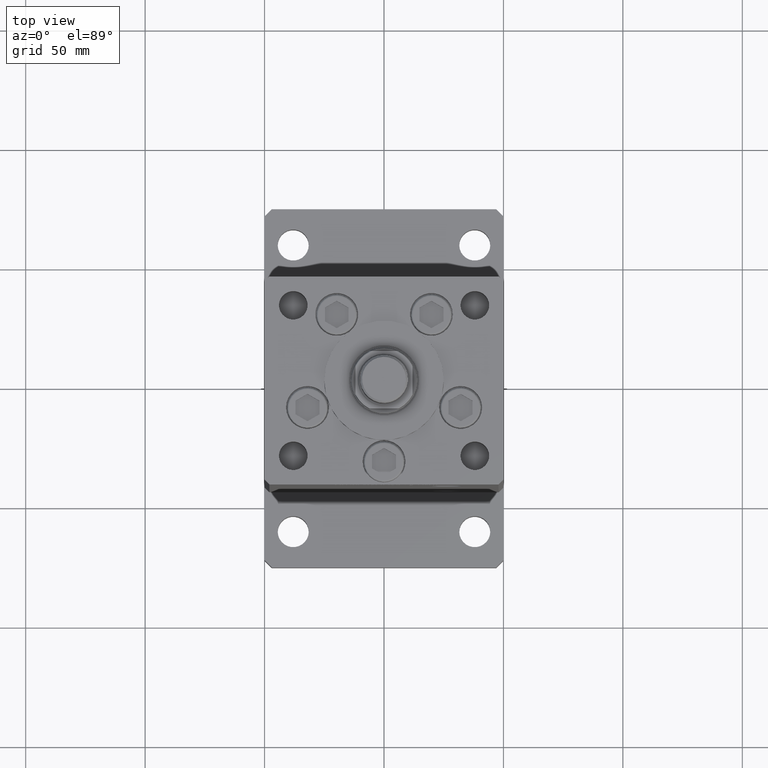
[diagram: clean part render]
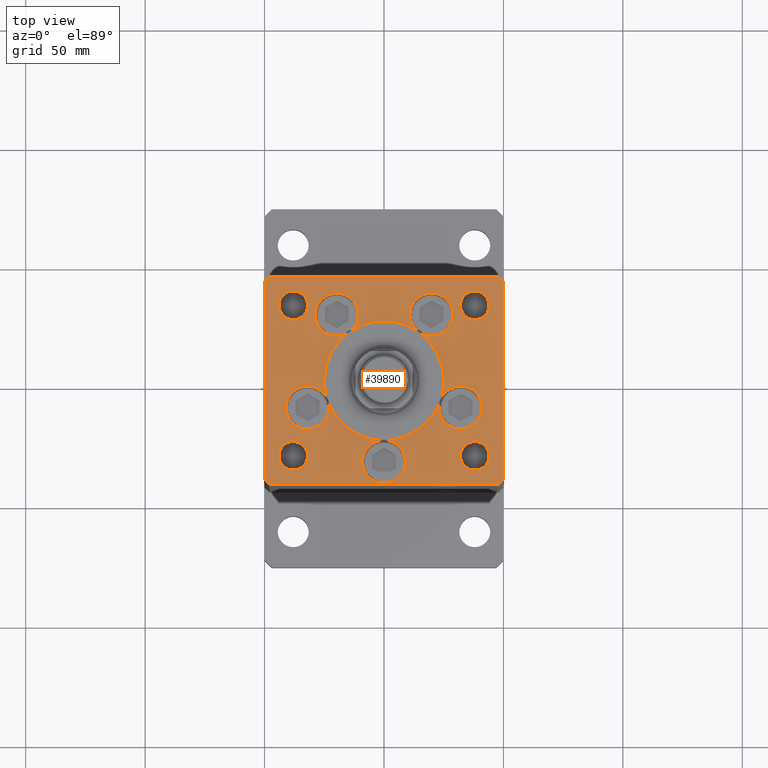
[diagram: same view with one face highlighted and labeled with its STEP entity id]
A machine part, top view. The second image highlights one B-rep face of the part: STEP entity #39890.
In plain terms, the highlighted planar face has unit normal (0, 0, 1).
Its self-contained STEP definition (entity closure, byte-faithful):
#365 = ORIENTED_EDGE ( 'NONE', *, *, #21326, .F. ) ;
#547 = ORIENTED_EDGE ( 'NONE', *, *, #8054, .F. ) ;
#694 = AXIS2_PLACEMENT_3D ( 'NONE', #52104, #26661, #51300 ) ;
#732 = CARTESIAN_POINT ( 'NONE',  ( 32.05550741379015989, -11.33333333333332860, 0.000000000000000000 ) ) ;
#916 = VECTOR ( 'NONE', #39343, 1000.000000000000000 ) ;
#937 = CARTESIAN_POINT ( 'NONE',  ( -38.00000000000000000, 31.50000000000000000, 0.000000000000000000 ) ) ;
#965 = DIRECTION ( 'NONE',  ( 1.000000000000000000, 1.156482317317871331E-15, 0.000000000000000000 ) ) ;
#1004 = DIRECTION ( 'NONE',  ( 0.000000000000000000, 0.000000000000000000, 1.000000000000000000 ) ) ;
#1280 = DIRECTION ( 'NONE',  ( 0.000000000000000000, 0.000000000000000000, 1.000000000000000000 ) ) ;
#1296 = LINE ( 'NONE', #18001, #916 ) ;
#1330 = EDGE_CURVE ( 'NONE', #43810, #5140, #34115, .T. ) ;
#1498 = CARTESIAN_POINT ( 'NONE',  ( -48.00000000000000711, -43.50000000000002842, 0.000000000000000000 ) ) ;
#1555 = AXIS2_PLACEMENT_3D ( 'NONE', #42412, #21629, #38300 ) ;
#1598 = CARTESIAN_POINT ( 'NONE',  ( 38.00000000000000000, 31.50000000000000000, 0.000000000000000000 ) ) ;
#2066 = EDGE_CURVE ( 'NONE', #39570, #11629, #37621, .T. ) ;
#2194 = CARTESIAN_POINT ( 'NONE',  ( -19.82068048781374969, 27.62499999999998934, 0.000000000000000000 ) ) ;
#2428 = CARTESIAN_POINT ( 'NONE',  ( 48.00000000000000711, -43.49999999999992184, 0.000000000000000000 ) ) ;
#2552 = CIRCLE ( 'NONE', #22670, 25.00000000000000000 ) ;
#2852 = ORIENTED_EDGE ( 'NONE', *, *, #27166, .F. ) ;
#2985 = EDGE_CURVE ( 'NONE', #47885, #35080, #1296, .T. ) ;
#3009 = DIRECTION ( 'NONE',  ( 1.000000000000000000, 0.000000000000000000, 0.000000000000000000 ) ) ;
#3069 = CARTESIAN_POINT ( 'NONE',  ( 47.99999999999999289, 43.50000000000000000, 0.000000000000000000 ) ) ;
#3446 = VECTOR ( 'NONE', #965, 1000.000000000000000 ) ;
#3599 = LINE ( 'NONE', #3069, #19699 ) ;
#3602 = CARTESIAN_POINT ( 'NONE',  ( 19.82068048781374969, 27.62499999999998934, 0.000000000000000000 ) ) ;
#3819 = ORIENTED_EDGE ( 'NONE', *, *, #29160, .T. ) ;
#3963 = CIRCLE ( 'NONE', #16210, 9.000000000000000000 ) ;
#4031 = DIRECTION ( 'NONE',  ( 1.000000000000000000, 0.000000000000000000, 0.000000000000000000 ) ) ;
#4107 = EDGE_CURVE ( 'NONE', #15667, #29450, #18469, .T. ) ;
#4562 = AXIS2_PLACEMENT_3D ( 'NONE', #46480, #28704, #7880 ) ;
#4747 = DIRECTION ( 'NONE',  ( -0.000000000000000000, 0.000000000000000000, 1.000000000000000000 ) ) ;
#4867 = EDGE_CURVE ( 'NONE', #5140, #36970, #22820, .T. ) ;
#4907 = CARTESIAN_POINT ( 'NONE',  ( 50.00000000000000000, 41.50000000000000711, 0.000000000000000000 ) ) ;
#4919 = DIRECTION ( 'NONE',  ( 1.000000000000000000, 0.000000000000000000, 0.000000000000000000 ) ) ;
#4947 = EDGE_LOOP ( 'NONE', ( #18286, #2852, #49913, #13211, #51606, #17849, #22180, #20981, #12060, #35923, #37244, #32061, #547, #48212, #16993, #365, #48820, #49549, #15083, #47666, #31608, #26861 ) ) ;
#5000 = CARTESIAN_POINT ( 'NONE',  ( -19.82068048781374969, 27.62499999999998934, 0.000000000000000000 ) ) ;
#5085 = CARTESIAN_POINT ( 'NONE',  ( -49.99999999999999289, -41.50000000000000000, 0.000000000000000000 ) ) ;
#5140 = VERTEX_POINT ( 'NONE', #36997 ) ;
#5651 = CARTESIAN_POINT ( 'NONE',  ( 0.000000000000000000, -6.938893903907228378E-15, 0.000000000000000000 ) ) ;
#5711 = DIRECTION ( 'NONE',  ( 1.000000000000000000, 0.000000000000000000, 0.000000000000000000 ) ) ;
#5908 = DIRECTION ( 'NONE',  ( 1.000000000000000000, 0.000000000000000000, 0.000000000000000000 ) ) ;
#5992 = CIRCLE ( 'NONE', #28762, 9.000000000000000000 ) ;
#6090 = CARTESIAN_POINT ( 'NONE',  ( -38.00000000000000711, -31.50000000000000711, 0.000000000000000000 ) ) ;
#6215 = EDGE_CURVE ( 'NONE', #43294, #38494, #8849, .T. ) ;
#6313 = ORIENTED_EDGE ( 'NONE', *, *, #53088, .T. ) ;
#6526 = DIRECTION ( 'NONE',  ( -1.000000000000000000, 0.000000000000000000, 0.000000000000000000 ) ) ;
#6548 = DIRECTION ( 'NONE',  ( 0.000000000000000000, 0.000000000000000000, 1.000000000000000000 ) ) ;
#6550 = DIRECTION ( 'NONE',  ( 0.7071067811865474617, 0.7071067811865474617, 0.000000000000000000 ) ) ;
#6745 = AXIS2_PLACEMENT_3D ( 'NONE', #26740, #1280, #19054 ) ;
#6824 = EDGE_CURVE ( 'NONE', #41336, #31789, #7158, .T. ) ;
#7158 = CIRCLE ( 'NONE', #18543, 25.00000000000000000 ) ;
#7180 = DIRECTION ( 'NONE',  ( 1.000000000000000000, 0.000000000000000000, 0.000000000000000000 ) ) ;
#7181 = VERTEX_POINT ( 'NONE', #39169 ) ;
#7704 = AXIS2_PLACEMENT_3D ( 'NONE', #10635, #44035, #6526 ) ;
#7873 = VERTEX_POINT ( 'NONE', #31105 ) ;
#7880 = DIRECTION ( 'NONE',  ( 1.000000000000000000, 0.000000000000000000, 0.000000000000000000 ) ) ;
#7890 = VERTEX_POINT ( 'NONE', #50158 ) ;
#7927 = CARTESIAN_POINT ( 'NONE',  ( -38.00000000000000711, -31.50000000000000711, 0.000000000000000000 ) ) ;
#7946 = CIRCLE ( 'NONE', #42939, 9.000000000000000000 ) ;
#8054 = EDGE_CURVE ( 'NONE', #11629, #20760, #27314, .T. ) ;
#8341 = CARTESIAN_POINT ( 'NONE',  ( -32.05550741379015989, -11.33333333333332860, 0.000000000000000000 ) ) ;
#8363 = LINE ( 'NONE', #37112, #38875 ) ;
#8485 = VERTEX_POINT ( 'NONE', #5085 ) ;
#8577 = AXIS2_PLACEMENT_3D ( 'NONE', #937, #26671, #13804 ) ;
#8623 = AXIS2_PLACEMENT_3D ( 'NONE', #12603, #42696, #4919 ) ;
#8642 = LINE ( 'NONE', #41771, #15152 ) ;
#8849 = CIRCLE ( 'NONE', #15849, 6.000000000000005329 ) ;
#8873 = ORIENTED_EDGE ( 'NONE', *, *, #30519, .F. ) ;
#9009 = LINE ( 'NONE', #4907, #19304 ) ;
#9252 = DIRECTION ( 'NONE',  ( 1.672022627447525486E-16, -1.000000000000000000, 0.000000000000000000 ) ) ;
#9649 = DIRECTION ( 'NONE',  ( 1.000000000000000000, 0.000000000000000000, 0.000000000000000000 ) ) ;
#9840 = VERTEX_POINT ( 'NONE', #50633 ) ;
#9987 = AXIS2_PLACEMENT_3D ( 'NONE', #3602, #19788, #7180 ) ;
#10063 = VERTEX_POINT ( 'NONE', #53045 ) ;
#10309 = CIRCLE ( 'NONE', #1555, 9.000000000000001776 ) ;
#10339 = ORIENTED_EDGE ( 'NONE', *, *, #14762, .T. ) ;
#10425 = DIRECTION ( 'NONE',  ( 0.000000000000000000, 0.000000000000000000, 1.000000000000000000 ) ) ;
#10490 = EDGE_CURVE ( 'NONE', #12495, #35467, #48788, .T. ) ;
#10635 = CARTESIAN_POINT ( 'NONE',  ( 38.00000000000000711, -31.50000000000000711, 0.000000000000000000 ) ) ;
#10678 = DIRECTION ( 'NONE',  ( 0.000000000000000000, 0.000000000000000000, 1.000000000000000000 ) ) ;
#11104 = AXIS2_PLACEMENT_3D ( 'NONE', #34563, #34815, #21457 ) ;
#11264 = ORIENTED_EDGE ( 'NONE', *, *, #22548, .F. ) ;
#11413 = EDGE_CURVE ( 'NONE', #5140, #43857, #28717, .T. ) ;
#11545 = EDGE_CURVE ( 'NONE', #7181, #34355, #15624, .T. ) ;
#11628 = AXIS2_PLACEMENT_3D ( 'NONE', #1598, #35540, #5711 ) ;
#11629 = VERTEX_POINT ( 'NONE', #40199 ) ;
#12060 = ORIENTED_EDGE ( 'NONE', *, *, #4867, .F. ) ;
#12365 = CARTESIAN_POINT ( 'NONE',  ( 44.00000000000001421, -31.50000000000000711, 0.000000000000000000 ) ) ;
#12495 = VERTEX_POINT ( 'NONE', #27364 ) ;
#12540 = CARTESIAN_POINT ( 'NONE',  ( 19.82068048781374969, 27.62499999999998934, 0.000000000000000000 ) ) ;
#12603 = CARTESIAN_POINT ( 'NONE',  ( 0.000000000000000000, -6.938893903907228378E-15, 0.000000000000000000 ) ) ;
#12897 = CIRCLE ( 'NONE', #32244, 25.00000000000000000 ) ;
#13075 = DIRECTION ( 'NONE',  ( 0.000000000000000000, 0.000000000000000000, 1.000000000000000000 ) ) ;
#13079 = CARTESIAN_POINT ( 'NONE',  ( 0.000000000000000000, -6.938893903907228378E-15, 0.000000000000000000 ) ) ;
#13211 = ORIENTED_EDGE ( 'NONE', *, *, #47209, .F. ) ;
#13589 = VERTEX_POINT ( 'NONE', #38884 ) ;
#13601 = CARTESIAN_POINT ( 'NONE',  ( -48.00000000000000000, 43.49999999999997868, 0.000000000000000000 ) ) ;
#13804 = DIRECTION ( 'NONE',  ( -1.000000000000000000, 0.000000000000000000, 0.000000000000000000 ) ) ;
#13960 = VERTEX_POINT ( 'NONE', #31934 ) ;
#13996 = CARTESIAN_POINT ( 'NONE',  ( 10.82068048781375147, 27.62499999999998934, 0.000000000000000000 ) ) ;
#14040 = FACE_BOUND ( 'NONE', #43356, .T. ) ;
#14369 = AXIS2_PLACEMENT_3D ( 'NONE', #52265, #6548, #31463 ) ;
#14762 = EDGE_CURVE ( 'NONE', #50085, #8485, #18267, .T. ) ;
#14937 = CARTESIAN_POINT ( 'NONE',  ( 0.000000000000000000, -6.938893903907228378E-15, 0.000000000000000000 ) ) ;
#15003 = CARTESIAN_POINT ( 'NONE',  ( 32.05550741379015989, -11.33333333333332860, 0.000000000000000000 ) ) ;
#15075 = EDGE_CURVE ( 'NONE', #13589, #48395, #22333, .T. ) ;
#15083 = ORIENTED_EDGE ( 'NONE', *, *, #6824, .F. ) ;
#15152 = VECTOR ( 'NONE', #42326, 1000.000000000000000 ) ;
#15202 = DIRECTION ( 'NONE',  ( 0.000000000000000000, 0.000000000000000000, 1.000000000000000000 ) ) ;
#15624 = CIRCLE ( 'NONE', #7704, 6.000000000000005329 ) ;
#15667 = VERTEX_POINT ( 'NONE', #28256 ) ;
#15692 = CARTESIAN_POINT ( 'NONE',  ( -25.00000000000000000, -6.938893903907228378E-15, 0.000000000000000000 ) ) ;
#15771 = CARTESIAN_POINT ( 'NONE',  ( 48.00000000000000711, -43.49999999999992184, 0.000000000000000000 ) ) ;
#15795 = ORIENTED_EDGE ( 'NONE', *, *, #45938, .T. ) ;
#15849 = AXIS2_PLACEMENT_3D ( 'NONE', #6090, #35391, #18152 ) ;
#16132 = CARTESIAN_POINT ( 'NONE',  ( -23.05550741379015633, -11.33333333333332860, 0.000000000000000000 ) ) ;
#16210 = AXIS2_PLACEMENT_3D ( 'NONE', #44294, #40187, #23492 ) ;
#16993 = ORIENTED_EDGE ( 'NONE', *, *, #18362, .F. ) ;
#17125 = DIRECTION ( 'NONE',  ( 0.000000000000000000, 0.000000000000000000, 1.000000000000000000 ) ) ;
#17626 = FACE_BOUND ( 'NONE', #24598, .T. ) ;
#17664 = AXIS2_PLACEMENT_3D ( 'NONE', #15003, #28149, #48396 ) ;
#17682 = ORIENTED_EDGE ( 'NONE', *, *, #10490, .T. ) ;
#17849 = ORIENTED_EDGE ( 'NONE', *, *, #11413, .F. ) ;
#18001 = CARTESIAN_POINT ( 'NONE',  ( 50.00000000000000000, -41.49999999999992895, 0.000000000000000000 ) ) ;
#18019 = AXIS2_PLACEMENT_3D ( 'NONE', #7927, #38056, #49538 ) ;
#18152 = DIRECTION ( 'NONE',  ( 1.000000000000000000, 0.000000000000000000, 0.000000000000000000 ) ) ;
#18227 = CARTESIAN_POINT ( 'NONE',  ( 50.00000000000000000, 41.50000000000000711, 0.000000000000000000 ) ) ;
#18267 = LINE ( 'NONE', #43439, #28832 ) ;
#18286 = ORIENTED_EDGE ( 'NONE', *, *, #35137, .F. ) ;
#18362 = EDGE_CURVE ( 'NONE', #42755, #39570, #10309, .T. ) ;
#18469 = CIRCLE ( 'NONE', #28954, 8.999999999999998224 ) ;
#18479 = VERTEX_POINT ( 'NONE', #13601 ) ;
#18543 = AXIS2_PLACEMENT_3D ( 'NONE', #53229, #15202, #20378 ) ;
#18545 = CIRCLE ( 'NONE', #4562, 5.999999999999998224 ) ;
#18906 = EDGE_CURVE ( 'NONE', #43857, #10063, #37392, .T. ) ;
#19054 = DIRECTION ( 'NONE',  ( 1.000000000000000000, 0.000000000000000000, 0.000000000000000000 ) ) ;
#19082 = DIRECTION ( 'NONE',  ( 0.000000000000000000, 0.000000000000000000, 1.000000000000000000 ) ) ;
#19304 = VECTOR ( 'NONE', #21639, 999.9999999999998863 ) ;
#19316 = DIRECTION ( 'NONE',  ( 0.000000000000000000, 0.000000000000000000, 1.000000000000000000 ) ) ;
#19456 = DIRECTION ( 'NONE',  ( 0.000000000000000000, 0.000000000000000000, 1.000000000000000000 ) ) ;
#19512 = DIRECTION ( 'NONE',  ( -1.000000000000000000, 0.000000000000000000, 0.000000000000000000 ) ) ;
#19699 = VECTOR ( 'NONE', #48530, 1000.000000000000000 ) ;
#19719 = CARTESIAN_POINT ( 'NONE',  ( 41.05550741379015989, -11.33333333333332860, 0.000000000000000000 ) ) ;
#19788 = DIRECTION ( 'NONE',  ( 0.000000000000000000, 0.000000000000000000, 1.000000000000000000 ) ) ;
#20103 = AXIS2_PLACEMENT_3D ( 'NONE', #732, #1004, #5908 ) ;
#20248 = CARTESIAN_POINT ( 'NONE',  ( -14.57402977045128978, 20.31249999999999289, 0.000000000000000000 ) ) ;
#20378 = DIRECTION ( 'NONE',  ( 1.000000000000000000, 0.000000000000000000, 0.000000000000000000 ) ) ;
#20460 = CIRCLE ( 'NONE', #14369, 9.000000000000001776 ) ;
#20753 = AXIS2_PLACEMENT_3D ( 'NONE', #8341, #17125, #33270 ) ;
#20760 = VERTEX_POINT ( 'NONE', #28292 ) ;
#20981 = ORIENTED_EDGE ( 'NONE', *, *, #46354, .F. ) ;
#21157 = EDGE_CURVE ( 'NONE', #31789, #39570, #12897, .T. ) ;
#21193 = CIRCLE ( 'NONE', #36909, 8.999999999999998224 ) ;
#21200 = EDGE_CURVE ( 'NONE', #44729, #11629, #39110, .T. ) ;
#21326 = EDGE_CURVE ( 'NONE', #30503, #42755, #46979, .T. ) ;
#21457 = DIRECTION ( 'NONE',  ( -1.000000000000000000, 0.000000000000000000, 0.000000000000000000 ) ) ;
#21629 = DIRECTION ( 'NONE',  ( 0.000000000000000000, 0.000000000000000000, 1.000000000000000000 ) ) ;
#21639 = DIRECTION ( 'NONE',  ( -0.7071067811865512365, 0.7071067811865439090, 0.000000000000000000 ) ) ;
#21739 = DIRECTION ( 'NONE',  ( 0.000000000000000000, 0.000000000000000000, 1.000000000000000000 ) ) ;
#22011 = DIRECTION ( 'NONE',  ( 1.000000000000000000, 0.000000000000000000, 0.000000000000000000 ) ) ;
#22180 = ORIENTED_EDGE ( 'NONE', *, *, #1330, .F. ) ;
#22201 = CARTESIAN_POINT ( 'NONE',  ( -28.82068048781374969, 27.62499999999998934, 0.000000000000000000 ) ) ;
#22290 = ORIENTED_EDGE ( 'NONE', *, *, #53982, .T. ) ;
#22303 = EDGE_LOOP ( 'NONE', ( #8873, #34755 ) ) ;
#22333 = LINE ( 'NONE', #1498, #3446 ) ;
#22548 = EDGE_CURVE ( 'NONE', #38494, #43294, #33778, .T. ) ;
#22594 = DIRECTION ( 'NONE',  ( 1.000000000000000000, 0.000000000000000000, 0.000000000000000000 ) ) ;
#22670 = AXIS2_PLACEMENT_3D ( 'NONE', #14937, #19316, #35725 ) ;
#22820 = CIRCLE ( 'NONE', #53401, 9.000000000000001776 ) ;
#22868 = CARTESIAN_POINT ( 'NONE',  ( 19.82068048781374969, 27.62499999999998934, 0.000000000000000000 ) ) ;
#23036 = DIRECTION ( 'NONE',  ( 1.000000000000000000, 0.000000000000000000, 0.000000000000000000 ) ) ;
#23492 = DIRECTION ( 'NONE',  ( 1.000000000000000000, 0.000000000000000000, 0.000000000000000000 ) ) ;
#23555 = AXIS2_PLACEMENT_3D ( 'NONE', #36329, #19082, #40438 ) ;
#23823 = AXIS2_PLACEMENT_3D ( 'NONE', #42758, #10425, #23036 ) ;
#24019 = CARTESIAN_POINT ( 'NONE',  ( 23.05550741379015633, -11.33333333333332682, 0.000000000000000000 ) ) ;
#24353 = EDGE_CURVE ( 'NONE', #35467, #12495, #34706, .T. ) ;
#24598 = EDGE_LOOP ( 'NONE', ( #46508, #17682 ) ) ;
#24756 = CIRCLE ( 'NONE', #11628, 5.999999999999998224 ) ;
#24814 = CARTESIAN_POINT ( 'NONE',  ( 9.000000000000000000, -34.00000000000000000, 0.000000000000000000 ) ) ;
#25077 = DIRECTION ( 'NONE',  ( 0.7071067811865402453, -0.7071067811865549002, 0.000000000000000000 ) ) ;
#25478 = CARTESIAN_POINT ( 'NONE',  ( 50.00000000000000000, -41.49999999999992895, 0.000000000000000000 ) ) ;
#25727 = CIRCLE ( 'NONE', #39697, 9.000000000000000000 ) ;
#25915 = ORIENTED_EDGE ( 'NONE', *, *, #11545, .T. ) ;
#26661 = DIRECTION ( 'NONE',  ( 0.000000000000000000, 0.000000000000000000, 1.000000000000000000 ) ) ;
#26671 = DIRECTION ( 'NONE',  ( -0.000000000000000000, -0.000000000000000000, -1.000000000000000000 ) ) ;
#26740 = CARTESIAN_POINT ( 'NONE',  ( 0.000000000000000000, -34.00000000000000000, 0.000000000000000000 ) ) ;
#26861 = ORIENTED_EDGE ( 'NONE', *, *, #29836, .F. ) ;
#27166 = EDGE_CURVE ( 'NONE', #29450, #10063, #38845, .T. ) ;
#27242 = DIRECTION ( 'NONE',  ( 0.000000000000000000, 0.000000000000000000, 1.000000000000000000 ) ) ;
#27314 = CIRCLE ( 'NONE', #23823, 9.000000000000000000 ) ;
#27364 = CARTESIAN_POINT ( 'NONE',  ( -44.00000000000000000, 31.50000000000000000, 0.000000000000000000 ) ) ;
#27368 = EDGE_CURVE ( 'NONE', #20760, #44729, #25727, .T. ) ;
#28149 = DIRECTION ( 'NONE',  ( 0.000000000000000000, 0.000000000000000000, 1.000000000000000000 ) ) ;
#28256 = CARTESIAN_POINT ( 'NONE',  ( 28.82068048781374969, 27.62499999999998934, 0.000000000000000000 ) ) ;
#28292 = CARTESIAN_POINT ( 'NONE',  ( -9.000000000000000000, -34.00000000000000000, 0.000000000000000000 ) ) ;
#28586 = FACE_BOUND ( 'NONE', #4947, .T. ) ;
#28704 = DIRECTION ( 'NONE',  ( 0.000000000000000000, 0.000000000000000000, 1.000000000000000000 ) ) ;
#28717 = CIRCLE ( 'NONE', #8623, 25.00000000000000000 ) ;
#28762 = AXIS2_PLACEMENT_3D ( 'NONE', #5000, #21739, #9649 ) ;
#28832 = VECTOR ( 'NONE', #9252, 1000.000000000000000 ) ;
#28954 = AXIS2_PLACEMENT_3D ( 'NONE', #22868, #27242, #22594 ) ;
#29160 = EDGE_CURVE ( 'NONE', #9840, #18479, #3599, .T. ) ;
#29450 = VERTEX_POINT ( 'NONE', #13996 ) ;
#29787 = DIRECTION ( 'NONE',  ( 1.000000000000000000, 0.000000000000000000, 0.000000000000000000 ) ) ;
#29836 = EDGE_CURVE ( 'NONE', #41336, #7873, #3963, .T. ) ;
#29857 = ORIENTED_EDGE ( 'NONE', *, *, #2985, .T. ) ;
#29903 = CARTESIAN_POINT ( 'NONE',  ( -44.00000000000001421, -31.50000000000000711, 0.000000000000000000 ) ) ;
#29904 = AXIS2_PLACEMENT_3D ( 'NONE', #41111, #35929, #19512 ) ;
#30503 = VERTEX_POINT ( 'NONE', #47862 ) ;
#30519 = EDGE_CURVE ( 'NONE', #13960, #7890, #24756, .T. ) ;
#30747 = CARTESIAN_POINT ( 'NONE',  ( 0.000000000000000000, 0.000000000000000000, 0.000000000000000000 ) ) ;
#31105 = CARTESIAN_POINT ( 'NONE',  ( -10.82068048781375147, 27.62499999999998934, 0.000000000000000000 ) ) ;
#31463 = DIRECTION ( 'NONE',  ( 1.000000000000000000, 0.000000000000000000, 0.000000000000000000 ) ) ;
#31608 = ORIENTED_EDGE ( 'NONE', *, *, #33553, .F. ) ;
#31758 = DIRECTION ( 'NONE',  ( 1.000000000000000000, 0.000000000000000000, 0.000000000000000000 ) ) ;
#31789 = VERTEX_POINT ( 'NONE', #15692 ) ;
#31934 = CARTESIAN_POINT ( 'NONE',  ( 44.00000000000000000, 31.50000000000000000, 0.000000000000000000 ) ) ;
#32061 = ORIENTED_EDGE ( 'NONE', *, *, #27368, .F. ) ;
#32145 = EDGE_CURVE ( 'NONE', #7890, #13960, #18545, .T. ) ;
#32244 = AXIS2_PLACEMENT_3D ( 'NONE', #5651, #47537, #43699 ) ;
#33270 = DIRECTION ( 'NONE',  ( 1.000000000000000000, 0.000000000000000000, 0.000000000000000000 ) ) ;
#33553 = EDGE_CURVE ( 'NONE', #7873, #52323, #5992, .T. ) ;
#33778 = CIRCLE ( 'NONE', #18019, 6.000000000000005329 ) ;
#34045 = FACE_OUTER_BOUND ( 'NONE', #44222, .T. ) ;
#34115 = CIRCLE ( 'NONE', #20103, 9.000000000000001776 ) ;
#34355 = VERTEX_POINT ( 'NONE', #12365 ) ;
#34563 = CARTESIAN_POINT ( 'NONE',  ( -38.00000000000000000, 31.50000000000000000, 0.000000000000000000 ) ) ;
#34618 = CARTESIAN_POINT ( 'NONE',  ( -50.00000000000000711, 41.49999999999999289, 0.000000000000000000 ) ) ;
#34706 = CIRCLE ( 'NONE', #11104, 5.999999999999998224 ) ;
#34755 = ORIENTED_EDGE ( 'NONE', *, *, #32145, .F. ) ;
#34815 = DIRECTION ( 'NONE',  ( -0.000000000000000000, -0.000000000000000000, -1.000000000000000000 ) ) ;
#35080 = VERTEX_POINT ( 'NONE', #18227 ) ;
#35137 = EDGE_CURVE ( 'NONE', #10063, #41336, #2552, .T. ) ;
#35384 = VECTOR ( 'NONE', #6550, 1000.000000000000114 ) ;
#35391 = DIRECTION ( 'NONE',  ( 0.000000000000000000, 0.000000000000000000, 1.000000000000000000 ) ) ;
#35467 = VERTEX_POINT ( 'NONE', #51967 ) ;
#35540 = DIRECTION ( 'NONE',  ( 0.000000000000000000, 0.000000000000000000, 1.000000000000000000 ) ) ;
#35725 = DIRECTION ( 'NONE',  ( 1.000000000000000000, 0.000000000000000000, 0.000000000000000000 ) ) ;
#35923 = ORIENTED_EDGE ( 'NONE', *, *, #39525, .F. ) ;
#35929 = DIRECTION ( 'NONE',  ( -0.000000000000000000, -0.000000000000000000, -1.000000000000000000 ) ) ;
#36329 = CARTESIAN_POINT ( 'NONE',  ( 0.000000000000000000, -6.938893903907228378E-15, 0.000000000000000000 ) ) ;
#36532 = CARTESIAN_POINT ( 'NONE',  ( -32.00000000000000000, -31.50000000000000711, 0.000000000000000000 ) ) ;
#36872 = CIRCLE ( 'NONE', #29904, 6.000000000000005329 ) ;
#36909 = AXIS2_PLACEMENT_3D ( 'NONE', #12540, #13075, #29787 ) ;
#36970 = VERTEX_POINT ( 'NONE', #24019 ) ;
#36997 = CARTESIAN_POINT ( 'NONE',  ( 23.57022603955158502, -8.333333333333332149, 0.000000000000000000 ) ) ;
#37058 = ORIENTED_EDGE ( 'NONE', *, *, #6215, .F. ) ;
#37112 = CARTESIAN_POINT ( 'NONE',  ( -49.99999999999999289, -41.50000000000000000, 0.000000000000000000 ) ) ;
#37244 = ORIENTED_EDGE ( 'NONE', *, *, #21200, .F. ) ;
#37392 = CIRCLE ( 'NONE', #694, 25.00000000000000000 ) ;
#37492 = ORIENTED_EDGE ( 'NONE', *, *, #38865, .T. ) ;
#37621 = CIRCLE ( 'NONE', #48093, 25.00000000000000000 ) ;
#37750 = CIRCLE ( 'NONE', #17664, 9.000000000000001776 ) ;
#38056 = DIRECTION ( 'NONE',  ( 0.000000000000000000, 0.000000000000000000, 1.000000000000000000 ) ) ;
#38288 = DIRECTION ( 'NONE',  ( 0.000000000000000000, 0.000000000000000000, 1.000000000000000000 ) ) ;
#38300 = DIRECTION ( 'NONE',  ( 1.000000000000000000, 0.000000000000000000, 0.000000000000000000 ) ) ;
#38494 = VERTEX_POINT ( 'NONE', #29903 ) ;
#38616 = ORIENTED_EDGE ( 'NONE', *, *, #49358, .T. ) ;
#38845 = CIRCLE ( 'NONE', #9987, 8.999999999999998224 ) ;
#38865 = EDGE_CURVE ( 'NONE', #35080, #9840, #9009, .T. ) ;
#38875 = VECTOR ( 'NONE', #25077, 1000.000000000000114 ) ;
#38884 = CARTESIAN_POINT ( 'NONE',  ( -48.00000000000000711, -43.50000000000002842, 0.000000000000000000 ) ) ;
#38960 = FACE_BOUND ( 'NONE', #46973, .T. ) ;
#39110 = CIRCLE ( 'NONE', #6745, 9.000000000000000000 ) ;
#39169 = CARTESIAN_POINT ( 'NONE',  ( 32.00000000000000000, -31.50000000000000711, 0.000000000000000000 ) ) ;
#39343 = DIRECTION ( 'NONE',  ( 0.000000000000000000, 1.000000000000000000, 0.000000000000000000 ) ) ;
#39525 = EDGE_CURVE ( 'NONE', #11629, #5140, #43672, .T. ) ;
#39570 = VERTEX_POINT ( 'NONE', #49449 ) ;
#39697 = AXIS2_PLACEMENT_3D ( 'NONE', #48730, #19456, #3009 ) ;
#39890 = ADVANCED_FACE ( 'NONE', ( #28586, #17626, #46902, #38960, #34045, #14040 ), #43058, .T. ) ;
#40187 = DIRECTION ( 'NONE',  ( 0.000000000000000000, 0.000000000000000000, 1.000000000000000000 ) ) ;
#40199 = CARTESIAN_POINT ( 'NONE',  ( 0.000000000000000000, -25.00000000000000000, 0.000000000000000000 ) ) ;
#40438 = DIRECTION ( 'NONE',  ( 1.000000000000000000, 0.000000000000000000, 0.000000000000000000 ) ) ;
#41111 = CARTESIAN_POINT ( 'NONE',  ( 38.00000000000000711, -31.50000000000000711, 0.000000000000000000 ) ) ;
#41336 = VERTEX_POINT ( 'NONE', #20248 ) ;
#41771 = CARTESIAN_POINT ( 'NONE',  ( -48.00000000000000000, 43.49999999999997868, 0.000000000000000000 ) ) ;
#41843 = DIRECTION ( 'NONE',  ( 1.000000000000000000, 0.000000000000000000, 0.000000000000000000 ) ) ;
#41854 = ORIENTED_EDGE ( 'NONE', *, *, #15075, .T. ) ;
#42326 = DIRECTION ( 'NONE',  ( -0.7071067811865524577, -0.7071067811865426878, 0.000000000000000000 ) ) ;
#42412 = CARTESIAN_POINT ( 'NONE',  ( -32.05550741379015989, -11.33333333333332860, 0.000000000000000000 ) ) ;
#42696 = DIRECTION ( 'NONE',  ( 0.000000000000000000, 0.000000000000000000, 1.000000000000000000 ) ) ;
#42755 = VERTEX_POINT ( 'NONE', #16132 ) ;
#42758 = CARTESIAN_POINT ( 'NONE',  ( 0.000000000000000000, -34.00000000000000000, 0.000000000000000000 ) ) ;
#42939 = AXIS2_PLACEMENT_3D ( 'NONE', #2194, #10678, #31758 ) ;
#43058 = PLANE ( 'NONE',  #48052 ) ;
#43294 = VERTEX_POINT ( 'NONE', #36532 ) ;
#43356 = EDGE_LOOP ( 'NONE', ( #15795, #25915 ) ) ;
#43439 = CARTESIAN_POINT ( 'NONE',  ( -50.00000000000000711, 41.49999999999999289, 0.000000000000000000 ) ) ;
#43655 = EDGE_CURVE ( 'NONE', #52323, #41336, #7946, .T. ) ;
#43672 = CIRCLE ( 'NONE', #23555, 25.00000000000000000 ) ;
#43699 = DIRECTION ( 'NONE',  ( 1.000000000000000000, 0.000000000000000000, 0.000000000000000000 ) ) ;
#43810 = VERTEX_POINT ( 'NONE', #19719 ) ;
#43857 = VERTEX_POINT ( 'NONE', #45155 ) ;
#44035 = DIRECTION ( 'NONE',  ( -0.000000000000000000, -0.000000000000000000, -1.000000000000000000 ) ) ;
#44222 = EDGE_LOOP ( 'NONE', ( #6313, #41854, #22290, #29857, #37492, #3819, #38616, #10339 ) ) ;
#44294 = CARTESIAN_POINT ( 'NONE',  ( -19.82068048781374969, 27.62499999999998934, 0.000000000000000000 ) ) ;
#44729 = VERTEX_POINT ( 'NONE', #24814 ) ;
#45155 = CARTESIAN_POINT ( 'NONE',  ( 25.00000000000000000, -3.877276906038844941E-15, 0.000000000000000000 ) ) ;
#45938 = EDGE_CURVE ( 'NONE', #34355, #7181, #36872, .T. ) ;
#46354 = EDGE_CURVE ( 'NONE', #36970, #43810, #37750, .T. ) ;
#46480 = CARTESIAN_POINT ( 'NONE',  ( 38.00000000000000000, 31.50000000000000000, 0.000000000000000000 ) ) ;
#46508 = ORIENTED_EDGE ( 'NONE', *, *, #24353, .T. ) ;
#46902 = FACE_BOUND ( 'NONE', #22303, .T. ) ;
#46973 = EDGE_LOOP ( 'NONE', ( #37058, #11264 ) ) ;
#46979 = CIRCLE ( 'NONE', #20753, 9.000000000000001776 ) ;
#47209 = EDGE_CURVE ( 'NONE', #10063, #15667, #21193, .T. ) ;
#47537 = DIRECTION ( 'NONE',  ( 0.000000000000000000, 0.000000000000000000, 1.000000000000000000 ) ) ;
#47666 = ORIENTED_EDGE ( 'NONE', *, *, #43655, .F. ) ;
#47862 = CARTESIAN_POINT ( 'NONE',  ( -41.05550741379015989, -11.33333333333332682, 0.000000000000000000 ) ) ;
#47885 = VERTEX_POINT ( 'NONE', #25478 ) ;
#48052 = AXIS2_PLACEMENT_3D ( 'NONE', #30747, #4747, #22011 ) ;
#48093 = AXIS2_PLACEMENT_3D ( 'NONE', #13079, #53600, #4031 ) ;
#48212 = ORIENTED_EDGE ( 'NONE', *, *, #2066, .F. ) ;
#48395 = VERTEX_POINT ( 'NONE', #15771 ) ;
#48396 = DIRECTION ( 'NONE',  ( 1.000000000000000000, 0.000000000000000000, 0.000000000000000000 ) ) ;
#48530 = DIRECTION ( 'NONE',  ( -1.000000000000000000, -2.168404344971008868E-16, 0.000000000000000000 ) ) ;
#48730 = CARTESIAN_POINT ( 'NONE',  ( 0.000000000000000000, -34.00000000000000000, 0.000000000000000000 ) ) ;
#48788 = CIRCLE ( 'NONE', #8577, 5.999999999999998224 ) ;
#48820 = ORIENTED_EDGE ( 'NONE', *, *, #52407, .F. ) ;
#49358 = EDGE_CURVE ( 'NONE', #18479, #50085, #8642, .T. ) ;
#49449 = CARTESIAN_POINT ( 'NONE',  ( -23.57022603955158502, -8.333333333333332149, 0.000000000000000000 ) ) ;
#49538 = DIRECTION ( 'NONE',  ( 1.000000000000000000, 0.000000000000000000, 0.000000000000000000 ) ) ;
#49549 = ORIENTED_EDGE ( 'NONE', *, *, #21157, .F. ) ;
#49913 = ORIENTED_EDGE ( 'NONE', *, *, #4107, .F. ) ;
#50085 = VERTEX_POINT ( 'NONE', #34618 ) ;
#50158 = CARTESIAN_POINT ( 'NONE',  ( 32.00000000000000000, 31.50000000000000000, 0.000000000000000000 ) ) ;
#50608 = CARTESIAN_POINT ( 'NONE',  ( 32.05550741379015989, -11.33333333333332860, 0.000000000000000000 ) ) ;
#50633 = CARTESIAN_POINT ( 'NONE',  ( 47.99999999999999289, 43.50000000000000000, 0.000000000000000000 ) ) ;
#51300 = DIRECTION ( 'NONE',  ( 1.000000000000000000, 0.000000000000000000, 0.000000000000000000 ) ) ;
#51606 = ORIENTED_EDGE ( 'NONE', *, *, #18906, .F. ) ;
#51967 = CARTESIAN_POINT ( 'NONE',  ( -32.00000000000000000, 31.50000000000000000, 0.000000000000000000 ) ) ;
#52008 = LINE ( 'NONE', #2428, #35384 ) ;
#52104 = CARTESIAN_POINT ( 'NONE',  ( 0.000000000000000000, -6.938893903907228378E-15, 0.000000000000000000 ) ) ;
#52265 = CARTESIAN_POINT ( 'NONE',  ( -32.05550741379015989, -11.33333333333332860, 0.000000000000000000 ) ) ;
#52323 = VERTEX_POINT ( 'NONE', #22201 ) ;
#52407 = EDGE_CURVE ( 'NONE', #39570, #30503, #20460, .T. ) ;
#53045 = CARTESIAN_POINT ( 'NONE',  ( 14.57402977045128623, 20.31249999999998579, 0.000000000000000000 ) ) ;
#53088 = EDGE_CURVE ( 'NONE', #8485, #13589, #8363, .T. ) ;
#53229 = CARTESIAN_POINT ( 'NONE',  ( 0.000000000000000000, -6.938893903907228378E-15, 0.000000000000000000 ) ) ;
#53401 = AXIS2_PLACEMENT_3D ( 'NONE', #50608, #38288, #41843 ) ;
#53600 = DIRECTION ( 'NONE',  ( 0.000000000000000000, 0.000000000000000000, 1.000000000000000000 ) ) ;
#53982 = EDGE_CURVE ( 'NONE', #48395, #47885, #52008, .T. ) ;